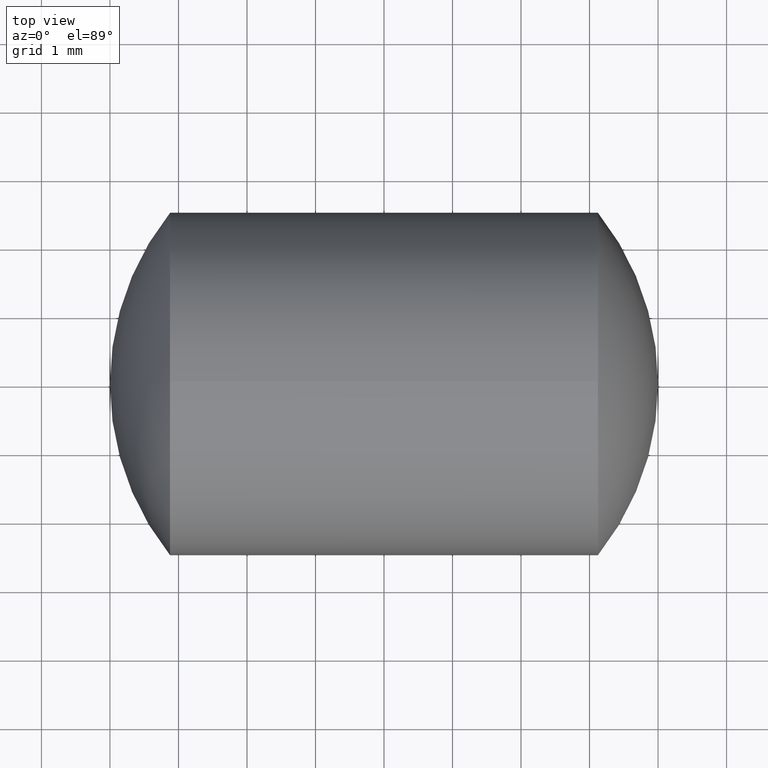
[diagram: clean part render]
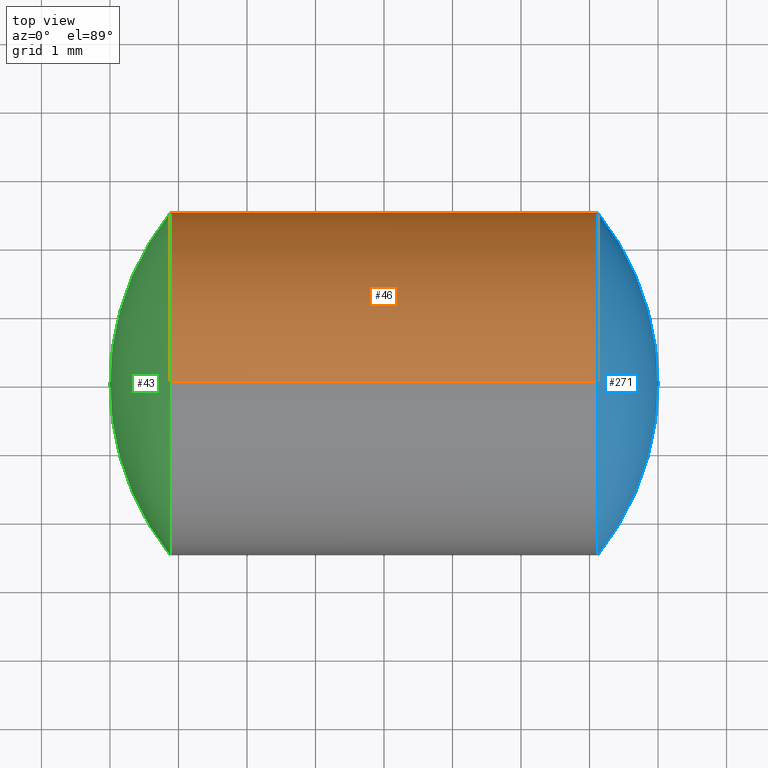
[diagram: same view with three faces highlighted in distinct colors, each labeled with its STEP entity id]
A machine part, top view with three faces highlighted in distinct colors.
Their STEP definitions:

[orange] entity #46 — the highlighted cylindrical surface (partial cylindrical patch) has radius 2.4995 mm, axis along (-1, -0, -0).
#1 = DIRECTION ( 'NONE',  ( 0.0000000000000000000, 0.0000000000000000000, 1.000000000000000000 ) ) ;
#5 = VERTEX_POINT ( 'NONE', #229 ) ;
#9 = FACE_OUTER_BOUND ( 'NONE', #184, .T. ) ;
#11 = EDGE_CURVE ( 'NONE', #276, #92, #101, .T. ) ;
#12 = CARTESIAN_POINT ( 'NONE',  ( -3.122904181920511700, 0.0000000000000000000, 0.0000000000000000000 ) ) ;
#13 = CARTESIAN_POINT ( 'NONE',  ( 3.122904181920509900, 2.499493842869675600, 0.0000000000000000000 ) ) ;
#22 = EDGE_CURVE ( 'NONE', #209, #116, #279, .T. ) ;
#31 = CARTESIAN_POINT ( 'NONE',  ( -4.636041519915886900, 3.060997134158864300E-016, -2.499493842869674700 ) ) ;
#34 = DIRECTION ( 'NONE',  ( 0.0000000000000000000, 0.0000000000000000000, 1.000000000000000000 ) ) ;
#46 = ADVANCED_FACE ( 'NONE', ( #9 ), #68, .T. ) ;
#51 = DIRECTION ( 'NONE',  ( 0.0000000000000000000, 0.0000000000000000000, 1.000000000000000000 ) ) ;
#68 = CYLINDRICAL_SURFACE ( 'NONE', #293, 2.499493842869674700 ) ;
#74 = AXIS2_PLACEMENT_3D ( 'NONE', #261, #206, #34 ) ;
#77 = CIRCLE ( 'NONE', #74, 2.499493842869675600 ) ;
#88 = VECTOR ( 'NONE', #99, 1000.000000000000000 ) ;
#91 = AXIS2_PLACEMENT_3D ( 'NONE', #12, #176, #152 ) ;
#92 = VERTEX_POINT ( 'NONE', #345 ) ;
#99 = DIRECTION ( 'NONE',  ( -1.000000000000000000, -0.0000000000000000000, -0.0000000000000000000 ) ) ;
#101 = LINE ( 'NONE', #282, #88 ) ;
#116 = VERTEX_POINT ( 'NONE', #317 ) ;
#119 = EDGE_CURVE ( 'NONE', #335, #5, #296, .T. ) ;
#120 = VECTOR ( 'NONE', #202, 1000.000000000000000 ) ;
#125 = DIRECTION ( 'NONE',  ( 0.0000000000000000000, 0.0000000000000000000, 1.000000000000000000 ) ) ;
#144 = DIRECTION ( 'NONE',  ( -1.000000000000000000, -0.0000000000000000000, -0.0000000000000000000 ) ) ;
#146 = CARTESIAN_POINT ( 'NONE',  ( -3.122904181920511700, 0.0000000000000000000, 0.0000000000000000000 ) ) ;
#152 = DIRECTION ( 'NONE',  ( 0.0000000000000000000, 0.0000000000000000000, 1.000000000000000000 ) ) ;
#163 = AXIS2_PLACEMENT_3D ( 'NONE', #318, #144, #1 ) ;
#172 = CARTESIAN_POINT ( 'NONE',  ( -4.636041519915886900, 0.0000000000000000000, 0.0000000000000000000 ) ) ;
#176 = DIRECTION ( 'NONE',  ( -1.000000000000000000, -0.0000000000000000000, -0.0000000000000000000 ) ) ;
#179 = LINE ( 'NONE', #31, #120 ) ;
#184 = EDGE_LOOP ( 'NONE', ( #340, #197, #306, #224, #219, #297 ) ) ;
#193 = CARTESIAN_POINT ( 'NONE',  ( -3.122904181920511700, 2.499493842869673400, 0.0000000000000000000 ) ) ;
#197 = ORIENTED_EDGE ( 'NONE', *, *, #273, .T. ) ;
#202 = DIRECTION ( 'NONE',  ( -1.000000000000000000, -0.0000000000000000000, -0.0000000000000000000 ) ) ;
#206 = DIRECTION ( 'NONE',  ( -1.000000000000000000, -0.0000000000000000000, -0.0000000000000000000 ) ) ;
#209 = VERTEX_POINT ( 'NONE', #193 ) ;
#215 = EDGE_CURVE ( 'NONE', #276, #335, #77, .T. ) ;
#219 = ORIENTED_EDGE ( 'NONE', *, *, #11, .F. ) ;
#223 = CIRCLE ( 'NONE', #91, 2.499493842869673800 ) ;
#224 = ORIENTED_EDGE ( 'NONE', *, *, #228, .F. ) ;
#228 = EDGE_CURVE ( 'NONE', #92, #209, #223, .T. ) ;
#229 = CARTESIAN_POINT ( 'NONE',  ( 3.122904181920509900, 3.060997134158865800E-016, -2.499493842869676000 ) ) ;
#231 = DIRECTION ( 'NONE',  ( -1.000000000000000000, -0.0000000000000000000, -0.0000000000000000000 ) ) ;
#251 = AXIS2_PLACEMENT_3D ( 'NONE', #146, #231, #51 ) ;
#261 = CARTESIAN_POINT ( 'NONE',  ( 3.122904181920509900, 0.0000000000000000000, 0.0000000000000000000 ) ) ;
#273 = EDGE_CURVE ( 'NONE', #5, #116, #179, .T. ) ;
#276 = VERTEX_POINT ( 'NONE', #292 ) ;
#279 = CIRCLE ( 'NONE', #251, 2.499493842869673800 ) ;
#282 = CARTESIAN_POINT ( 'NONE',  ( -4.636041519915886900, 0.0000000000000000000, 2.499493842869674700 ) ) ;
#285 = DIRECTION ( 'NONE',  ( -1.000000000000000000, -0.0000000000000000000, -0.0000000000000000000 ) ) ;
#292 = CARTESIAN_POINT ( 'NONE',  ( 3.122904181920509900, 0.0000000000000000000, 2.499493842869676000 ) ) ;
#293 = AXIS2_PLACEMENT_3D ( 'NONE', #172, #285, #125 ) ;
#296 = CIRCLE ( 'NONE', #163, 2.499493842869675600 ) ;
#297 = ORIENTED_EDGE ( 'NONE', *, *, #215, .T. ) ;
#306 = ORIENTED_EDGE ( 'NONE', *, *, #22, .F. ) ;
#317 = CARTESIAN_POINT ( 'NONE',  ( -3.122904181920511700, 3.060997134158863800E-016, -2.499493842869673800 ) ) ;
#318 = CARTESIAN_POINT ( 'NONE',  ( 3.122904181920509900, 0.0000000000000000000, 0.0000000000000000000 ) ) ;
#335 = VERTEX_POINT ( 'NONE', #13 ) ;
#340 = ORIENTED_EDGE ( 'NONE', *, *, #119, .T. ) ;
#345 = CARTESIAN_POINT ( 'NONE',  ( -3.122904181920511700, 0.0000000000000000000, 2.499493842869673800 ) ) ;

[blue] entity #271 — the highlighted spherical surface has radius 4 mm.
#3 = AXIS2_PLACEMENT_3D ( 'NONE', #55, #289, #288 ) ;
#10 = VERTEX_POINT ( 'NONE', #256 ) ;
#13 = CARTESIAN_POINT ( 'NONE',  ( 3.122904181920509900, 2.499493842869675600, 0.0000000000000000000 ) ) ;
#34 = DIRECTION ( 'NONE',  ( 0.0000000000000000000, 0.0000000000000000000, 1.000000000000000000 ) ) ;
#55 = CARTESIAN_POINT ( 'NONE',  ( 0.0000000000000000000, 0.0000000000000000000, 0.0000000000000000000 ) ) ;
#65 = CIRCLE ( 'NONE', #244, 2.499493842869675600 ) ;
#70 = SPHERICAL_SURFACE ( 'NONE', #260, 4.000000000000003600 ) ;
#73 = ORIENTED_EDGE ( 'NONE', *, *, #290, .T. ) ;
#74 = AXIS2_PLACEMENT_3D ( 'NONE', #261, #206, #34 ) ;
#77 = CIRCLE ( 'NONE', #74, 2.499493842869675600 ) ;
#78 = DIRECTION ( 'NONE',  ( -1.000000000000000000, -0.0000000000000000000, -0.0000000000000000000 ) ) ;
#79 = DIRECTION ( 'NONE',  ( 0.0000000000000000000, 0.0000000000000000000, 1.000000000000000000 ) ) ;
#103 = DIRECTION ( 'NONE',  ( 0.0000000000000000000, 1.224646799147353200E-016, -1.000000000000000000 ) ) ;
#136 = EDGE_CURVE ( 'NONE', #10, #344, #183, .T. ) ;
#149 = DIRECTION ( 'NONE',  ( 0.0000000000000000000, 1.000000000000000000, 0.0000000000000000000 ) ) ;
#153 = EDGE_LOOP ( 'NONE', ( #250, #73, #237, #192 ) ) ;
#159 = CIRCLE ( 'NONE', #3, 4.000000000000003600 ) ;
#183 = CIRCLE ( 'NONE', #336, 4.000000000000003600 ) ;
#192 = ORIENTED_EDGE ( 'NONE', *, *, #311, .F. ) ;
#196 = FACE_OUTER_BOUND ( 'NONE', #153, .T. ) ;
#200 = CARTESIAN_POINT ( 'NONE',  ( 0.0000000000000000000, 0.0000000000000000000, 0.0000000000000000000 ) ) ;
#204 = DIRECTION ( 'NONE',  ( 0.0000000000000000000, 1.000000000000000000, 1.224646799147353500E-016 ) ) ;
#206 = DIRECTION ( 'NONE',  ( -1.000000000000000000, -0.0000000000000000000, -0.0000000000000000000 ) ) ;
#207 = CARTESIAN_POINT ( 'NONE',  ( 3.122904181920509900, 0.0000000000000000000, 0.0000000000000000000 ) ) ;
#215 = EDGE_CURVE ( 'NONE', #276, #335, #77, .T. ) ;
#237 = ORIENTED_EDGE ( 'NONE', *, *, #215, .F. ) ;
#244 = AXIS2_PLACEMENT_3D ( 'NONE', #207, #78, #79 ) ;
#250 = ORIENTED_EDGE ( 'NONE', *, *, #136, .F. ) ;
#256 = CARTESIAN_POINT ( 'NONE',  ( 4.000000000000003600, 2.449293598294708900E-016, 0.0000000000000000000 ) ) ;
#260 = AXIS2_PLACEMENT_3D ( 'NONE', #328, #326, #149 ) ;
#261 = CARTESIAN_POINT ( 'NONE',  ( 3.122904181920509900, 0.0000000000000000000, 0.0000000000000000000 ) ) ;
#271 = ADVANCED_FACE ( 'NONE', ( #196 ), #70, .T. ) ;
#276 = VERTEX_POINT ( 'NONE', #292 ) ;
#288 = DIRECTION ( 'NONE',  ( 1.000000000000000000, 0.0000000000000000000, 0.0000000000000000000 ) ) ;
#289 = DIRECTION ( 'NONE',  ( -0.0000000000000000000, 0.0000000000000000000, 1.000000000000000000 ) ) ;
#290 = EDGE_CURVE ( 'NONE', #10, #335, #159, .T. ) ;
#292 = CARTESIAN_POINT ( 'NONE',  ( 3.122904181920509900, 0.0000000000000000000, 2.499493842869676000 ) ) ;
#295 = CARTESIAN_POINT ( 'NONE',  ( 3.122904181920509900, -2.499493842869675600, -3.060997134158865800E-016 ) ) ;
#311 = EDGE_CURVE ( 'NONE', #344, #276, #65, .T. ) ;
#326 = DIRECTION ( 'NONE',  ( -0.0000000000000000000, 0.0000000000000000000, -1.000000000000000000 ) ) ;
#328 = CARTESIAN_POINT ( 'NONE',  ( 0.0000000000000000000, 0.0000000000000000000, 0.0000000000000000000 ) ) ;
#335 = VERTEX_POINT ( 'NONE', #13 ) ;
#336 = AXIS2_PLACEMENT_3D ( 'NONE', #200, #103, #204 ) ;
#344 = VERTEX_POINT ( 'NONE', #295 ) ;

[green] entity #43 — the highlighted spherical surface has radius 4 mm.
#4 = CIRCLE ( 'NONE', #198, 2.499493842869673800 ) ;
#6 = DIRECTION ( 'NONE',  ( -0.0000000000000000000, 0.0000000000000000000, -1.000000000000000000 ) ) ;
#12 = CARTESIAN_POINT ( 'NONE',  ( -3.122904181920511700, 0.0000000000000000000, 0.0000000000000000000 ) ) ;
#27 = DIRECTION ( 'NONE',  ( 0.0000000000000000000, 1.000000000000000000, 0.0000000000000000000 ) ) ;
#29 = CARTESIAN_POINT ( 'NONE',  ( -3.122904181920511700, 0.0000000000000000000, 0.0000000000000000000 ) ) ;
#40 = VERTEX_POINT ( 'NONE', #195 ) ;
#43 = ADVANCED_FACE ( 'NONE', ( #253 ), #309, .T. ) ;
#52 = CARTESIAN_POINT ( 'NONE',  ( 0.0000000000000000000, 0.0000000000000000000, 0.0000000000000000000 ) ) ;
#53 = DIRECTION ( 'NONE',  ( -0.0000000000000000000, 0.0000000000000000000, 1.000000000000000000 ) ) ;
#56 = DIRECTION ( 'NONE',  ( 0.0000000000000000000, 1.224646799147353200E-016, -1.000000000000000000 ) ) ;
#61 = AXIS2_PLACEMENT_3D ( 'NONE', #322, #56, #62 ) ;
#62 = DIRECTION ( 'NONE',  ( 0.0000000000000000000, 1.000000000000000000, 1.224646799147353500E-016 ) ) ;
#71 = ORIENTED_EDGE ( 'NONE', *, *, #307, .T. ) ;
#87 = EDGE_CURVE ( 'NONE', #209, #40, #190, .T. ) ;
#91 = AXIS2_PLACEMENT_3D ( 'NONE', #12, #176, #152 ) ;
#92 = VERTEX_POINT ( 'NONE', #345 ) ;
#95 = EDGE_LOOP ( 'NONE', ( #96, #71, #327, #162 ) ) ;
#96 = ORIENTED_EDGE ( 'NONE', *, *, #188, .F. ) ;
#140 = DIRECTION ( 'NONE',  ( 1.000000000000000000, 0.0000000000000000000, 0.0000000000000000000 ) ) ;
#152 = DIRECTION ( 'NONE',  ( 0.0000000000000000000, 0.0000000000000000000, 1.000000000000000000 ) ) ;
#162 = ORIENTED_EDGE ( 'NONE', *, *, #87, .T. ) ;
#176 = DIRECTION ( 'NONE',  ( -1.000000000000000000, -0.0000000000000000000, -0.0000000000000000000 ) ) ;
#188 = EDGE_CURVE ( 'NONE', #203, #40, #232, .T. ) ;
#190 = CIRCLE ( 'NONE', #315, 4.000000000000003600 ) ;
#193 = CARTESIAN_POINT ( 'NONE',  ( -3.122904181920511700, 2.499493842869673400, 0.0000000000000000000 ) ) ;
#195 = CARTESIAN_POINT ( 'NONE',  ( -4.000000000000003600, 2.449293598294708900E-016, 0.0000000000000000000 ) ) ;
#198 = AXIS2_PLACEMENT_3D ( 'NONE', #29, #238, #234 ) ;
#203 = VERTEX_POINT ( 'NONE', #263 ) ;
#209 = VERTEX_POINT ( 'NONE', #193 ) ;
#223 = CIRCLE ( 'NONE', #91, 2.499493842869673800 ) ;
#226 = CARTESIAN_POINT ( 'NONE',  ( 0.0000000000000000000, 0.0000000000000000000, 0.0000000000000000000 ) ) ;
#228 = EDGE_CURVE ( 'NONE', #92, #209, #223, .T. ) ;
#232 = CIRCLE ( 'NONE', #61, 4.000000000000003600 ) ;
#234 = DIRECTION ( 'NONE',  ( 0.0000000000000000000, 0.0000000000000000000, 1.000000000000000000 ) ) ;
#238 = DIRECTION ( 'NONE',  ( -1.000000000000000000, -0.0000000000000000000, -0.0000000000000000000 ) ) ;
#253 = FACE_OUTER_BOUND ( 'NONE', #95, .T. ) ;
#263 = CARTESIAN_POINT ( 'NONE',  ( -3.122904181920511700, -2.499493842869673400, -3.060997134158862800E-016 ) ) ;
#265 = AXIS2_PLACEMENT_3D ( 'NONE', #52, #6, #27 ) ;
#307 = EDGE_CURVE ( 'NONE', #203, #92, #4, .T. ) ;
#309 = SPHERICAL_SURFACE ( 'NONE', #265, 4.000000000000003600 ) ;
#315 = AXIS2_PLACEMENT_3D ( 'NONE', #226, #53, #140 ) ;
#322 = CARTESIAN_POINT ( 'NONE',  ( 0.0000000000000000000, 0.0000000000000000000, 0.0000000000000000000 ) ) ;
#327 = ORIENTED_EDGE ( 'NONE', *, *, #228, .T. ) ;
#345 = CARTESIAN_POINT ( 'NONE',  ( -3.122904181920511700, 0.0000000000000000000, 2.499493842869673800 ) ) ;